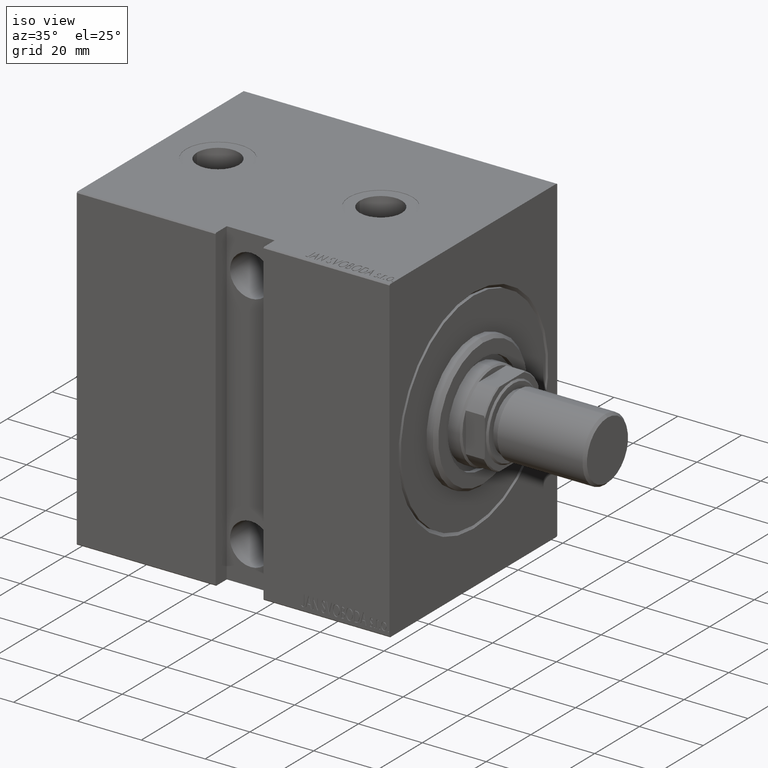
[diagram: clean part render]
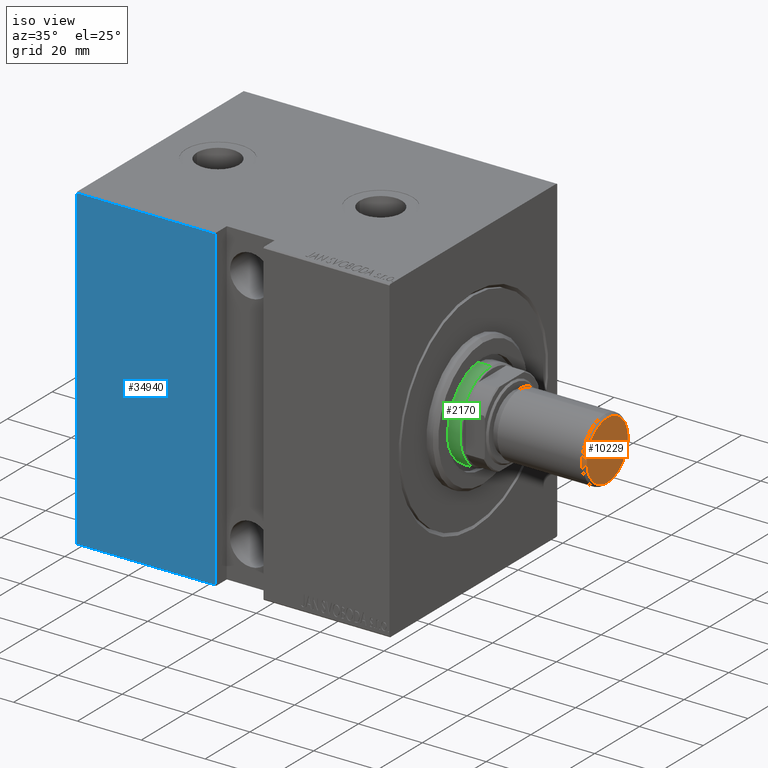
[diagram: same view with three faces highlighted in distinct colors, each labeled with its STEP entity id]
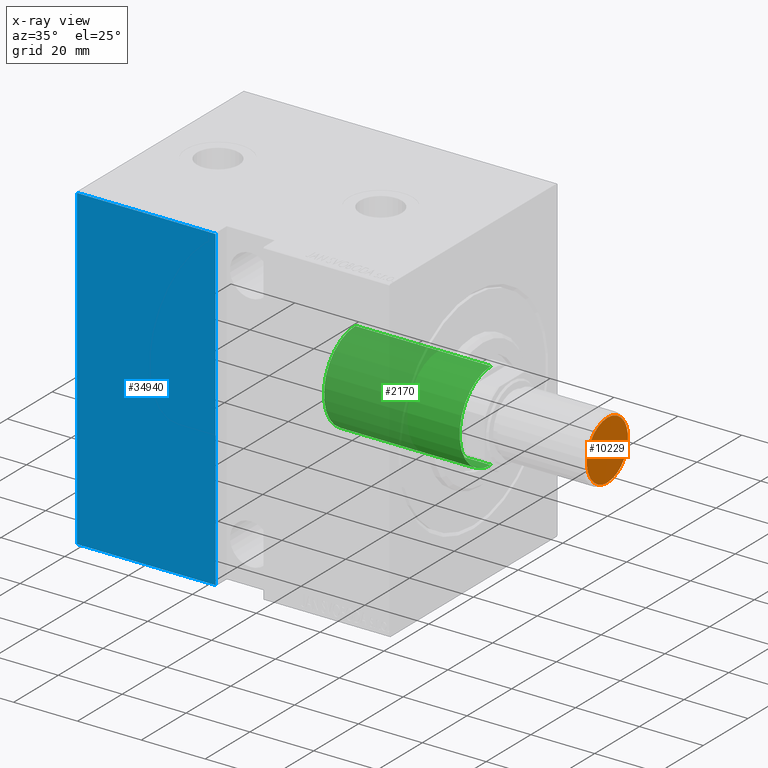
[diagram: x-ray of the same camera — body ghosted, the three highlighted faces saturated]
A machine part, iso view with three faces highlighted in distinct colors.
The next image is the same camera in x-ray (body ghosted, the three faces saturated) — at least one of them is partly hidden behind the body in this view.
Their STEP definitions:

[orange] entity #10229 — the highlighted planar face has unit normal (-1, 0, 0).
#3411 = CARTESIAN_POINT ( 'NONE',  ( 9.199999999999995737, 0.000000000000000000, 0.000000000000000000 ) ) ;
#3939 = ORIENTED_EDGE ( 'NONE', *, *, #9476, .T. ) ;
#5657 = FACE_OUTER_BOUND ( 'NONE', #9538, .T. ) ;
#5930 = CIRCLE ( 'NONE', #28399, 9.199999999999995737 ) ;
#6773 = DIRECTION ( 'NONE',  ( 1.000000000000000000, 0.000000000000000000, 0.000000000000000000 ) ) ;
#9476 = EDGE_CURVE ( 'NONE', #32846, #35791, #25960, .T. ) ;
#9538 = EDGE_LOOP ( 'NONE', ( #23940, #3939 ) ) ;
#10229 = ADVANCED_FACE ( 'NONE', ( #5657 ), #12698, .F. ) ;
#11859 = DIRECTION ( 'NONE',  ( 1.000000000000000000, 0.000000000000000000, 0.000000000000000000 ) ) ;
#12488 = CARTESIAN_POINT ( 'NONE',  ( 0.000000000000000000, 0.000000000000000000, 0.000000000000000000 ) ) ;
#12698 = PLANE ( 'NONE',  #25270 ) ;
#17778 = CARTESIAN_POINT ( 'NONE',  ( 0.000000000000000000, 0.000000000000000000, 0.000000000000000000 ) ) ;
#21712 = DIRECTION ( 'NONE',  ( 1.000000000000000000, 0.000000000000000000, -0.000000000000000000 ) ) ;
#21929 = DIRECTION ( 'NONE',  ( 0.000000000000000000, 0.000000000000000000, 1.000000000000000000 ) ) ;
#23940 = ORIENTED_EDGE ( 'NONE', *, *, #25989, .T. ) ;
#24574 = AXIS2_PLACEMENT_3D ( 'NONE', #41009, #30696, #6773 ) ;
#25270 = AXIS2_PLACEMENT_3D ( 'NONE', #12488, #21929, #21712 ) ;
#25960 = CIRCLE ( 'NONE', #24574, 9.199999999999995737 ) ;
#25989 = EDGE_CURVE ( 'NONE', #35791, #32846, #5930, .T. ) ;
#28399 = AXIS2_PLACEMENT_3D ( 'NONE', #17778, #41901, #11859 ) ;
#30696 = DIRECTION ( 'NONE',  ( -0.000000000000000000, -0.000000000000000000, -1.000000000000000000 ) ) ;
#32846 = VERTEX_POINT ( 'NONE', #40562 ) ;
#35791 = VERTEX_POINT ( 'NONE', #3411 ) ;
#40562 = CARTESIAN_POINT ( 'NONE',  ( -9.199999999999995737, 1.175660927181458645E-15, 0.000000000000000000 ) ) ;
#41009 = CARTESIAN_POINT ( 'NONE',  ( 0.000000000000000000, 0.000000000000000000, 0.000000000000000000 ) ) ;
#41901 = DIRECTION ( 'NONE',  ( -0.000000000000000000, -0.000000000000000000, -1.000000000000000000 ) ) ;

[blue] entity #34940 — the highlighted planar face has unit normal (-0, 1, -0).
#792 = CARTESIAN_POINT ( 'NONE',  ( 98.00000000000000000, 37.50000000000000711, -49.70000000000000284 ) ) ;
#1577 = EDGE_CURVE ( 'NONE', #26492, #38112, #37142, .T. ) ;
#6176 = EDGE_LOOP ( 'NONE', ( #6584, #39686, #23232, #30508 ) ) ;
#6584 = ORIENTED_EDGE ( 'NONE', *, *, #42328, .F. ) ;
#7606 = VECTOR ( 'NONE', #34745, 1000.000000000000000 ) ;
#7688 = VERTEX_POINT ( 'NONE', #37269 ) ;
#12486 = AXIS2_PLACEMENT_3D ( 'NONE', #28223, #24276, #17909 ) ;
#12766 = CARTESIAN_POINT ( 'NONE',  ( 54.50000000000001421, 37.50000000000000000, 49.70000000000000284 ) ) ;
#13144 = LINE ( 'NONE', #26527, #40805 ) ;
#14630 = VERTEX_POINT ( 'NONE', #792 ) ;
#16649 = DIRECTION ( 'NONE',  ( 1.000000000000000000, 0.000000000000000000, 0.000000000000000000 ) ) ;
#17070 = LINE ( 'NONE', #23438, #25429 ) ;
#17113 = CARTESIAN_POINT ( 'NONE',  ( 54.50000000000000000, 37.50000000000000000, -49.70000000000000284 ) ) ;
#17909 = DIRECTION ( 'NONE',  ( 0.000000000000000000, 1.387778780781445182E-16, -1.000000000000000000 ) ) ;
#18127 = PLANE ( 'NONE',  #12486 ) ;
#19218 = EDGE_CURVE ( 'NONE', #14630, #38112, #17070, .T. ) ;
#20199 = EDGE_CURVE ( 'NONE', #26492, #7688, #13144, .T. ) ;
#20464 = DIRECTION ( 'NONE',  ( -1.387778780781445676E-16, -0.000000000000000000, -1.000000000000000000 ) ) ;
#21353 = CARTESIAN_POINT ( 'NONE',  ( 98.00000000000000000, 37.50000000000000711, -50.00000000000000711 ) ) ;
#23232 = ORIENTED_EDGE ( 'NONE', *, *, #1577, .F. ) ;
#23438 = CARTESIAN_POINT ( 'NONE',  ( 98.00000000000000000, 37.50000000000000711, -49.70000000000000284 ) ) ;
#23904 = VECTOR ( 'NONE', #20464, 1000.000000000000000 ) ;
#24276 = DIRECTION ( 'NONE',  ( 0.000000000000000000, -1.000000000000000000, -1.387778780781445182E-16 ) ) ;
#24931 = FACE_OUTER_BOUND ( 'NONE', #6176, .T. ) ;
#25429 = VECTOR ( 'NONE', #40320, 1000.000000000000000 ) ;
#26492 = VERTEX_POINT ( 'NONE', #12766 ) ;
#26527 = CARTESIAN_POINT ( 'NONE',  ( 98.00000000000000000, 37.49999999999999289, 49.70000000000000284 ) ) ;
#27498 = LINE ( 'NONE', #21353, #7606 ) ;
#28223 = CARTESIAN_POINT ( 'NONE',  ( 98.00000000000000000, 37.50000000000000711, -50.00000000000000711 ) ) ;
#30508 = ORIENTED_EDGE ( 'NONE', *, *, #20199, .T. ) ;
#30543 = CARTESIAN_POINT ( 'NONE',  ( 54.50000000000000000, 37.50000000000000000, -50.00000000000000711 ) ) ;
#34745 = DIRECTION ( 'NONE',  ( 0.000000000000000000, -1.387778780781445182E-16, 1.000000000000000000 ) ) ;
#34940 = ADVANCED_FACE ( 'NONE', ( #24931 ), #18127, .F. ) ;
#37142 = LINE ( 'NONE', #30543, #23904 ) ;
#37269 = CARTESIAN_POINT ( 'NONE',  ( 98.00000000000000000, 37.49999999999999289, 49.70000000000000284 ) ) ;
#38112 = VERTEX_POINT ( 'NONE', #17113 ) ;
#39686 = ORIENTED_EDGE ( 'NONE', *, *, #19218, .T. ) ;
#40320 = DIRECTION ( 'NONE',  ( -1.000000000000000000, 0.000000000000000000, 0.000000000000000000 ) ) ;
#40805 = VECTOR ( 'NONE', #16649, 1000.000000000000000 ) ;
#42328 = EDGE_CURVE ( 'NONE', #14630, #7688, #27498, .T. ) ;

[green] entity #2170 — the highlighted cylindrical surface (partial cylindrical patch) has radius 14 mm, axis along (-1, -0, 0).
#138 = CYLINDRICAL_SURFACE ( 'NONE', #33707, 14.00000000000000178 ) ;
#993 = DIRECTION ( 'NONE',  ( -0.000000000000000000, -0.000000000000000000, -1.000000000000000000 ) ) ;
#2170 = ADVANCED_FACE ( 'NONE', ( #3866 ), #138, .T. ) ;
#3866 = FACE_OUTER_BOUND ( 'NONE', #27287, .T. ) ;
#4371 = EDGE_CURVE ( 'NONE', #20653, #11663, #26751, .T. ) ;
#5105 = LINE ( 'NONE', #37221, #36314 ) ;
#6057 = AXIS2_PLACEMENT_3D ( 'NONE', #13375, #6555, #19966 ) ;
#6516 = CARTESIAN_POINT ( 'NONE',  ( 0.000000000000000000, 0.000000000000000000, 90.00000000000000000 ) ) ;
#6555 = DIRECTION ( 'NONE',  ( 0.000000000000000000, 0.000000000000000000, 1.000000000000000000 ) ) ;
#7120 = AXIS2_PLACEMENT_3D ( 'NONE', #42075, #25190, #38786 ) ;
#8265 = CARTESIAN_POINT ( 'NONE',  ( -14.00000000000000178, 0.000000000000000000, 47.00000000000000000 ) ) ;
#8529 = CARTESIAN_POINT ( 'NONE',  ( 14.00000000000000178, 1.714505518806294835E-15, 47.00000000000000000 ) ) ;
#11663 = VERTEX_POINT ( 'NONE', #27316 ) ;
#13129 = DIRECTION ( 'NONE',  ( -1.000000000000000000, 0.000000000000000000, 0.000000000000000000 ) ) ;
#13375 = CARTESIAN_POINT ( 'NONE',  ( 0.000000000000000000, 0.000000000000000000, 47.00000000000000000 ) ) ;
#15207 = CARTESIAN_POINT ( 'NONE',  ( 14.00000000000000178, 1.714505518806294835E-15, 90.00000000000000000 ) ) ;
#16024 = ORIENTED_EDGE ( 'NONE', *, *, #4371, .T. ) ;
#16593 = VERTEX_POINT ( 'NONE', #8529 ) ;
#19924 = DIRECTION ( 'NONE',  ( -0.000000000000000000, -0.000000000000000000, -1.000000000000000000 ) ) ;
#19966 = DIRECTION ( 'NONE',  ( 1.000000000000000000, 0.000000000000000000, 0.000000000000000000 ) ) ;
#20653 = VERTEX_POINT ( 'NONE', #31501 ) ;
#23127 = EDGE_CURVE ( 'NONE', #20653, #16593, #29434, .T. ) ;
#25190 = DIRECTION ( 'NONE',  ( 0.000000000000000000, 0.000000000000000000, -1.000000000000000000 ) ) ;
#26751 = CIRCLE ( 'NONE', #7120, 14.00000000000000178 ) ;
#27287 = EDGE_LOOP ( 'NONE', ( #41713, #16024, #34357, #40277 ) ) ;
#27316 = CARTESIAN_POINT ( 'NONE',  ( -14.00000000000000178, 0.000000000000000000, 89.49999999999997158 ) ) ;
#29434 = LINE ( 'NONE', #15207, #39503 ) ;
#31501 = CARTESIAN_POINT ( 'NONE',  ( 14.00000000000000178, 1.714505518806294835E-15, 89.49999999999997158 ) ) ;
#31877 = DIRECTION ( 'NONE',  ( -0.000000000000000000, -0.000000000000000000, -1.000000000000000000 ) ) ;
#32011 = EDGE_CURVE ( 'NONE', #33830, #16593, #36894, .T. ) ;
#33707 = AXIS2_PLACEMENT_3D ( 'NONE', #6516, #19924, #13129 ) ;
#33830 = VERTEX_POINT ( 'NONE', #8265 ) ;
#34357 = ORIENTED_EDGE ( 'NONE', *, *, #39982, .T. ) ;
#36314 = VECTOR ( 'NONE', #993, 1000.000000000000000 ) ;
#36894 = CIRCLE ( 'NONE', #6057, 14.00000000000000178 ) ;
#37221 = CARTESIAN_POINT ( 'NONE',  ( -14.00000000000000178, 0.000000000000000000, 90.00000000000000000 ) ) ;
#38786 = DIRECTION ( 'NONE',  ( 1.000000000000000000, 0.000000000000000000, 0.000000000000000000 ) ) ;
#39503 = VECTOR ( 'NONE', #31877, 1000.000000000000000 ) ;
#39982 = EDGE_CURVE ( 'NONE', #11663, #33830, #5105, .T. ) ;
#40277 = ORIENTED_EDGE ( 'NONE', *, *, #32011, .T. ) ;
#41713 = ORIENTED_EDGE ( 'NONE', *, *, #23127, .F. ) ;
#42075 = CARTESIAN_POINT ( 'NONE',  ( 0.000000000000000000, 0.000000000000000000, 89.49999999999997158 ) ) ;